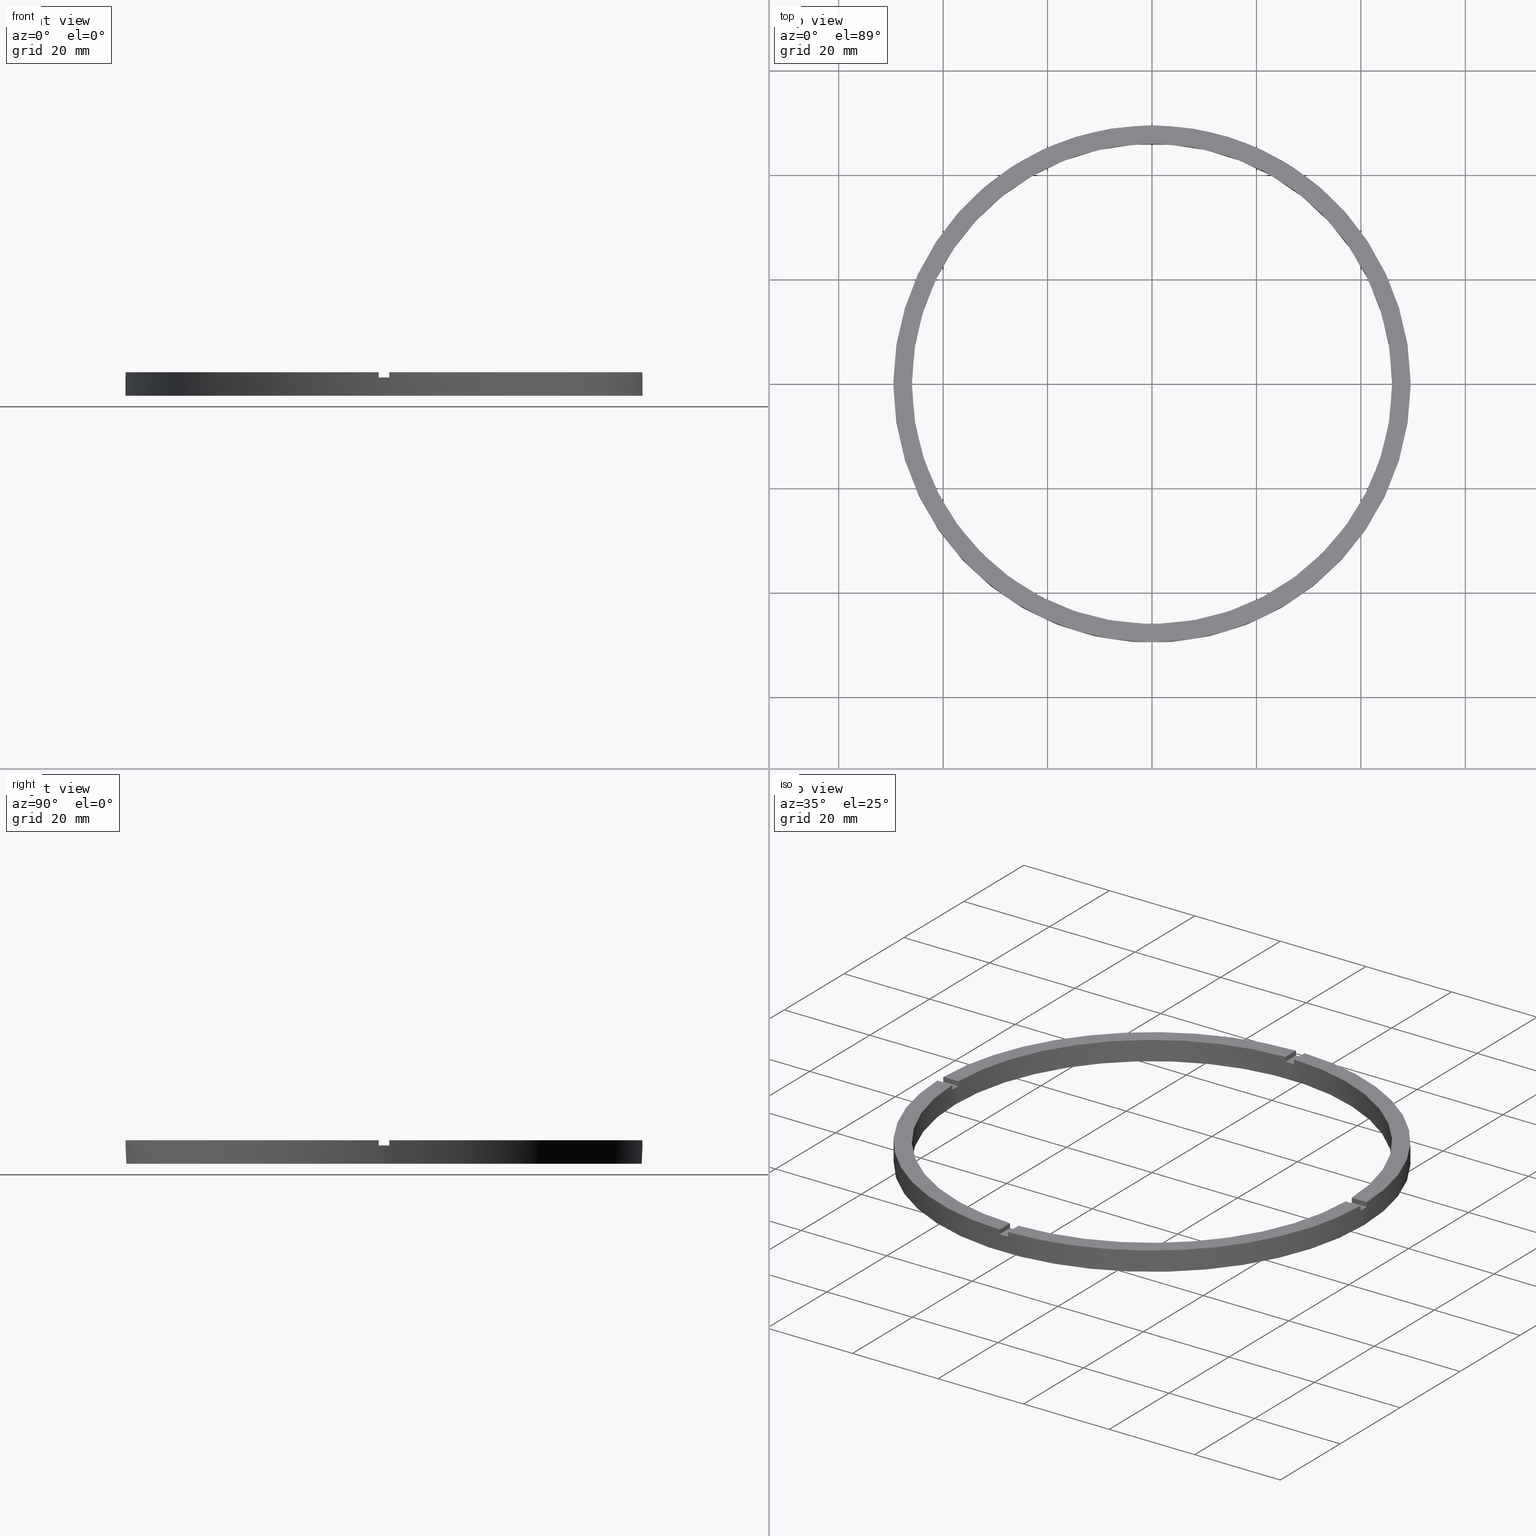
[diagram: canonical four-view strip — front | top / right | iso, engineering-drawing reading convention]
A machine part, canonical four-view strip (front | top / right | iso — engineering-drawing reading convention). The complete STEP part file that produces these views, byte-faithful:
ISO-10303-21;
HEADER;
FILE_DESCRIPTION (( 'STEP AP203' ),
    '1' );
FILE_NAME ('514203.step',
    '2024-12-26T02:47:40',
    ( 'MSI' ),
    ( '' ),
    'SwSTEP 2.0',
    'SolidWorks 2020',
    '' );
FILE_SCHEMA (( 'CONFIG_CONTROL_DESIGN' ));
ENDSEC;

DATA;
#1 = AXIS2_PLACEMENT_3D ( 'NONE', #121, #254, #624 ) ;
#2 = ORIENTED_EDGE ( 'NONE', *, *, #217, .F. ) ;
#3 = ORIENTED_EDGE ( 'NONE', *, *, #719, .T. ) ;
#4 = ADVANCED_FACE ( 'NONE', ( #178 ), #519, .F. ) ;
#5 = EDGE_LOOP ( 'NONE', ( #241, #258, #151, #314 ) ) ;
#6 = VERTEX_POINT ( 'NONE', #615 ) ;
#7 = EDGE_CURVE ( 'NONE', #552, #544, #697, .T. ) ;
#8 = VERTEX_POINT ( 'NONE', #461 ) ;
#9 = EDGE_LOOP ( 'NONE', ( #533, #240, #145, #2 ) ) ;
#10 = ORIENTED_EDGE ( 'NONE', *, *, #93, .T. ) ;
#11 = CARTESIAN_POINT ( 'NONE',  ( 0.9999999999998425704, -45.98912915026767934, 4.500000000000000000 ) ) ;
#12 = ORIENTED_EDGE ( 'NONE', *, *, #126, .F. ) ;
#13 = ORIENTED_EDGE ( 'NONE', *, *, #182, .T. ) ;
#14 = VERTEX_POINT ( 'NONE', #74 ) ;
#15 = ORIENTED_EDGE ( 'NONE', *, *, #561, .F. ) ;
#16 = APPROVAL_DATE_TIME ( #579, #737 ) ;
#17 = ORIENTED_EDGE ( 'NONE', *, *, #609, .F. ) ;
#18 = COORDINATED_UNIVERSAL_TIME_OFFSET ( 8, 0, .AHEAD. ) ;
#19 = PRODUCT_DEFINITION_SHAPE ( 'NONE', 'NONE',  #288 ) ;
#20 = AXIS2_PLACEMENT_3D ( 'NONE', #117, #415, #742 ) ;
#21 = ORIENTED_EDGE ( 'NONE', *, *, #625, .F. ) ;
#22 = ORIENTED_EDGE ( 'NONE', *, *, #152, .T. ) ;
#23 = VERTEX_POINT ( 'NONE', #293 ) ;
#24 = CARTESIAN_POINT ( 'NONE',  ( 0.000000000000000000, 0.000000000000000000, 3.499999999999999556 ) ) ;
#25 = EDGE_CURVE ( 'NONE', #247, #404, #455, .T. ) ;
#26 = ORIENTED_EDGE ( 'NONE', *, *, #120, .T. ) ;
#27 = CC_DESIGN_PERSON_AND_ORGANIZATION_ASSIGNMENT ( #66, #456, ( #636 ) ) ;
#28 = ORIENTED_EDGE ( 'NONE', *, *, #465, .F. ) ;
#29 = EDGE_LOOP ( 'NONE', ( #132, #384 ) ) ;
#30 = DIRECTION ( 'NONE',  ( 1.000000000000000000, 0.000000000000000000, 0.000000000000000000 ) ) ;
#31 = ORIENTED_EDGE ( 'NONE', *, *, #650, .T. ) ;
#32 = CARTESIAN_POINT ( 'NONE',  ( -49.48989795907849043, 0.9999999999999688027, 3.499999999999999556 ) ) ;
#33 = ORIENTED_EDGE ( 'NONE', *, *, #410, .F. ) ;
#34 = DATE_TIME_ROLE ( 'classification_date' ) ;
#35 = CARTESIAN_POINT ( 'NONE',  ( 0.000000000000000000, 0.000000000000000000, 4.500000000000000000 ) ) ;
#36 = CIRCLE ( 'NONE', #434, 46.00000000000000000 ) ;
#37 = ORIENTED_EDGE ( 'NONE', *, *, #98, .T. ) ;
#38 = LINE ( 'NONE', #406, #581 ) ;
#39 = ORIENTED_EDGE ( 'NONE', *, *, #280, .F. ) ;
#40 = DIRECTION ( 'NONE',  ( 6.505213034913025371E-17, -1.000000000000000000, 0.000000000000000000 ) ) ;
#41 = LINE ( 'NONE', #610, #576 ) ;
#42 = CARTESIAN_POINT ( 'NONE',  ( 0.000000000000000000, 0.000000000000000000, 3.499999999999999556 ) ) ;
#43 = ORIENTED_EDGE ( 'NONE', *, *, #671, .T. ) ;
#44 = LINE ( 'NONE', #157, #56 ) ;
#45 = APPROVAL_ROLE ( '' ) ;
#46 = CARTESIAN_POINT ( 'NONE',  ( 0.9999999999999733546, 49.48989795907849043, 3.499999999999999556 ) ) ;
#47 = EDGE_CURVE ( 'NONE', #665, #526, #174, .T. ) ;
#48 = DIRECTION ( 'NONE',  ( 0.000000000000000000, 0.000000000000000000, 1.000000000000000000 ) ) ;
#49 = CALENDAR_DATE ( 2024, 26, 12 ) ;
#50 = DIRECTION ( 'NONE',  ( 0.000000000000000000, 0.000000000000000000, -1.000000000000000000 ) ) ;
#51 = DIRECTION ( 'NONE',  ( 0.000000000000000000, 1.000000000000000000, 0.000000000000000000 ) ) ;
#52 = COORDINATED_UNIVERSAL_TIME_OFFSET ( 8, 0, .AHEAD. ) ;
#53 = AXIS2_PLACEMENT_3D ( 'NONE', #42, #602, #418 ) ;
#54 = LOCAL_TIME ( 10, 47, 40.00000000000000000, #340 ) ;
#55 = VECTOR ( 'NONE', #600, 1000.000000000000000 ) ;
#56 = VECTOR ( 'NONE', #641, 1000.000000000000000 ) ;
#57 = LOCAL_TIME ( 10, 47, 40.00000000000000000, #587 ) ;
#58 = FACE_OUTER_BOUND ( 'NONE', #261, .T. ) ;
#59 = APPROVAL_DATE_TIME ( #338, #156 ) ;
#60 = DIRECTION ( 'NONE',  ( 1.000000000000000000, 0.000000000000000000, -0.000000000000000000 ) ) ;
#61 = CARTESIAN_POINT ( 'NONE',  ( -39.50000000000019185, -1.000000000000029310, 3.499999999999999556 ) ) ;
#62 = DATE_AND_TIME ( #553, #287 ) ;
#63 = EDGE_CURVE ( 'NONE', #754, #401, #198, .T. ) ;
#64 = CARTESIAN_POINT ( 'NONE',  ( 0.9999999999998430145, -49.48989795907849043, 4.500000000000000000 ) ) ;
#65 = CIRCLE ( 'NONE', #473, 49.50000000000000711 ) ;
#66 = PERSON_AND_ORGANIZATION ( #386, #559 ) ;
#67 = CARTESIAN_POINT ( 'NONE',  ( 0.9999999999999733546, 39.50000000000000711, 3.499999999999999556 ) ) ;
#68 = EDGE_CURVE ( 'NONE', #436, #568, #715, .T. ) ;
#69 = PERSON_AND_ORGANIZATION ( #386, #559 ) ;
#70 = DIRECTION ( 'NONE',  ( -1.000000000000000000, -1.301042606982605074E-16, 0.000000000000000000 ) ) ;
#71 = DIRECTION ( 'NONE',  ( -1.000000000000000000, -6.505213034913025371E-17, 0.000000000000000000 ) ) ;
#72 = DATE_AND_TIME ( #591, #57 ) ;
#73 = LOCAL_TIME ( 10, 47, 40.00000000000000000, #327 ) ;
#74 = CARTESIAN_POINT ( 'NONE',  ( 0.9999999999998430145, -49.48989795907849043, 3.499999999999999556 ) ) ;
#75 = DIRECTION ( 'NONE',  ( 0.000000000000000000, 0.000000000000000000, 1.000000000000000000 ) ) ;
#76 = CARTESIAN_POINT ( 'NONE',  ( 0.000000000000000000, 0.000000000000000000, 3.499999999999999556 ) ) ;
#77 = CIRCLE ( 'NONE', #614, 49.50000000000000711 ) ;
#78 = VECTOR ( 'NONE', #139, 1000.000000000000000 ) ;
#79 = CARTESIAN_POINT ( 'NONE',  ( 49.48989795907849043, -1.000000000000155209, 3.499999999999999556 ) ) ;
#80 = CIRCLE ( 'NONE', #692, 46.00000000000000000 ) ;
#81 = PLANE ( 'NONE',  #509 ) ;
#82 = CARTESIAN_POINT ( 'NONE',  ( -46.00000000000000000, 0.000000000000000000, 3.499999999999999556 ) ) ;
#83 = DIRECTION ( 'NONE',  ( 1.301042606982605074E-16, -1.000000000000000000, 0.000000000000000000 ) ) ;
#84 = CARTESIAN_POINT ( 'NONE',  ( 45.98912915026767223, -1.000000000000155431, 4.500000000000000000 ) ) ;
#85 = CARTESIAN_POINT ( 'NONE',  ( -45.98912915026767223, -1.000000000000030420, 4.500000000000000000 ) ) ;
#86 = EDGE_CURVE ( 'NONE', #774, #401, #687, .T. ) ;
#87 = CARTESIAN_POINT ( 'NONE',  ( 0.000000000000000000, 0.000000000000000000, 0.000000000000000000 ) ) ;
#88 = CARTESIAN_POINT ( 'NONE',  ( 0.000000000000000000, 0.000000000000000000, 3.499999999999999556 ) ) ;
#89 = DIRECTION ( 'NONE',  ( 1.000000000000000000, 0.000000000000000000, -0.000000000000000000 ) ) ;
#90 = AXIS2_PLACEMENT_3D ( 'NONE', #221, #205, #676 ) ;
#91 = CARTESIAN_POINT ( 'NONE',  ( 0.000000000000000000, 0.000000000000000000, 3.499999999999999556 ) ) ;
#92 = DIRECTION ( 'NONE',  ( 0.000000000000000000, 0.000000000000000000, 1.000000000000000000 ) ) ;
#93 = EDGE_CURVE ( 'NONE', #424, #163, #176, .T. ) ;
#94 = CARTESIAN_POINT ( 'NONE',  ( -1.000000000000026645, 45.98912915026767223, 4.500000000000000000 ) ) ;
#95 = APPROVAL_STATUS ( 'not_yet_approved' ) ;
#96 = DIRECTION ( 'NONE',  ( 0.000000000000000000, 0.000000000000000000, 1.000000000000000000 ) ) ;
#97 = DIRECTION ( 'NONE',  ( 1.000000000000000000, 6.505213034913025371E-17, 0.000000000000000000 ) ) ;
#98 = EDGE_CURVE ( 'NONE', #689, #649, #448, .T. ) ;
#99 = CARTESIAN_POINT ( 'NONE',  ( -1.000000000000157430, -45.98912915026767223, 4.500000000000000000 ) ) ;
#100 = CARTESIAN_POINT ( 'NONE',  ( 0.9999999999998416822, -39.50000000000018474, 3.499999999999999556 ) ) ;
#101 = AXIS2_PLACEMENT_3D ( 'NONE', #408, #374, #611 ) ;
#102 = DIRECTION ( 'NONE',  ( 1.000000000000000000, 0.000000000000000000, -0.000000000000000000 ) ) ;
#103 = EDGE_CURVE ( 'NONE', #525, #189, #181, .T. ) ;
#104 = CC_DESIGN_PERSON_AND_ORGANIZATION_ASSIGNMENT ( #291, #605, ( #288 ) ) ;
#105 = CARTESIAN_POINT ( 'NONE',  ( -1.000000000000026645, 49.48989795907849043, 4.500000000000000000 ) ) ;
#106 = APPROVAL_STATUS ( 'not_yet_approved' ) ;
#107 = DIRECTION ( 'NONE',  ( -1.000000000000000000, -1.951563910473907735E-16, 0.000000000000000000 ) ) ;
#108 = EDGE_CURVE ( 'NONE', #763, #526, #449, .T. ) ;
#109 = CARTESIAN_POINT ( 'NONE',  ( -1.000000000000026645, 39.50000000000000711, 3.499999999999999556 ) ) ;
#110 = DIRECTION ( 'NONE',  ( -0.000000000000000000, -0.000000000000000000, -1.000000000000000000 ) ) ;
#111 = AXIS2_PLACEMENT_3D ( 'NONE', #627, #179, #379 ) ;
#112 = DIRECTION ( 'NONE',  ( -0.000000000000000000, -0.000000000000000000, -1.000000000000000000 ) ) ;
#113 = CARTESIAN_POINT ( 'NONE',  ( 49.48989795907849043, 0.9999999999998447908, 3.499999999999999556 ) ) ;
#114 = DIRECTION ( 'NONE',  ( 0.000000000000000000, 0.000000000000000000, 1.000000000000000000 ) ) ;
#115 = EDGE_CURVE ( 'NONE', #542, #411, #207, .T. ) ;
#116 = ADVANCED_FACE ( 'NONE', ( #202 ), #474, .T. ) ;
#117 = CARTESIAN_POINT ( 'NONE',  ( 0.000000000000000000, 0.000000000000000000, 3.499999999999999556 ) ) ;
#118 = ADVANCED_FACE ( 'NONE', ( #722 ), #588, .T. ) ;
#119 = CARTESIAN_POINT ( 'NONE',  ( -45.98912915026767223, 0.9999999999999696909, 3.499999999999999556 ) ) ;
#120 = EDGE_CURVE ( 'NONE', #23, #652, #482, .T. ) ;
#121 = CARTESIAN_POINT ( 'NONE',  ( 0.000000000000000000, 0.000000000000000000, 4.500000000000000000 ) ) ;
#122 = CARTESIAN_POINT ( 'NONE',  ( 0.9999999999998425704, -45.98912915026767934, 3.499999999999999556 ) ) ;
#123 = AXIS2_PLACEMENT_3D ( 'NONE', #91, #342, #446 ) ;
#124 = EDGE_LOOP ( 'NONE', ( #560, #31, #753, #162 ) ) ;
#125 = ORIENTED_EDGE ( 'NONE', *, *, #115, .T. ) ;
#126 = EDGE_CURVE ( 'NONE', #303, #453, #725, .T. ) ;
#127 = AXIS2_PLACEMENT_3D ( 'NONE', #349, #739, #30 ) ;
#128 = DIRECTION ( 'NONE',  ( 0.000000000000000000, -0.000000000000000000, 1.000000000000000000 ) ) ;
#129 = VECTOR ( 'NONE', #324, 1000.000000000000000 ) ;
#130 = DIRECTION ( 'NONE',  ( -0.000000000000000000, -0.000000000000000000, -1.000000000000000000 ) ) ;
#131 = LINE ( 'NONE', #100, #426 ) ;
#132 = ORIENTED_EDGE ( 'NONE', *, *, #126, .T. ) ;
#133 = VECTOR ( 'NONE', #114, 1000.000000000000000 ) ;
#134 = LINE ( 'NONE', #504, #165 ) ;
#135 = AXIS2_PLACEMENT_3D ( 'NONE', #364, #226, #748 ) ;
#136 = APPROVAL ( #95, 'δָ��' ) ;
#137 = EDGE_LOOP ( 'NONE', ( #567, #681, #26, #443, #237, #530 ) ) ;
#138 = CARTESIAN_POINT ( 'NONE',  ( -1.000000000000158318, -39.50000000000018474, 3.499999999999999556 ) ) ;
#139 = DIRECTION ( 'NONE',  ( 1.000000000000000000, 1.951563910473907735E-16, -0.000000000000000000 ) ) ;
#140 = ORIENTED_EDGE ( 'NONE', *, *, #571, .T. ) ;
#141 = DIRECTION ( 'NONE',  ( 0.000000000000000000, 0.000000000000000000, 1.000000000000000000 ) ) ;
#142 = ORIENTED_EDGE ( 'NONE', *, *, #571, .F. ) ;
#143 = FACE_OUTER_BOUND ( 'NONE', #575, .T. ) ;
#144 = DIRECTION ( 'NONE',  ( -1.301042606982605074E-16, 1.000000000000000000, -0.000000000000000000 ) ) ;
#145 = ORIENTED_EDGE ( 'NONE', *, *, #120, .F. ) ;
#146 = DIRECTION ( 'NONE',  ( 1.000000000000000000, 0.000000000000000000, 0.000000000000000000 ) ) ;
#147 = AXIS2_PLACEMENT_3D ( 'NONE', #347, #270, #731 ) ;
#148 = ORIENTED_EDGE ( 'NONE', *, *, #601, .T. ) ;
#149 = CARTESIAN_POINT ( 'NONE',  ( 0.000000000000000000, 0.000000000000000000, 3.499999999999999556 ) ) ;
#150 = APPROVAL_ROLE ( '' ) ;
#151 = ORIENTED_EDGE ( 'NONE', *, *, #685, .F. ) ;
#152 = EDGE_CURVE ( 'NONE', #8, #404, #729, .T. ) ;
#153 = ORIENTED_EDGE ( 'NONE', *, *, #378, .T. ) ;
#154 = LINE ( 'NONE', #648, #393 ) ;
#155 = DIRECTION ( 'NONE',  ( 0.000000000000000000, 0.000000000000000000, 1.000000000000000000 ) ) ;
#156 = APPROVAL ( #106, 'δָ��' ) ;
#157 = CARTESIAN_POINT ( 'NONE',  ( 45.98912915026767934, 0.9999999999998445688, 4.500000000000000000 ) ) ;
#158 = CARTESIAN_POINT ( 'NONE',  ( 39.50000000000000000, 0.9999999999998441247, 3.499999999999999556 ) ) ;
#159 = ORIENTED_EDGE ( 'NONE', *, *, #152, .F. ) ;
#160 = EDGE_LOOP ( 'NONE', ( #761, #148, #556, #297 ) ) ;
#161 = CARTESIAN_POINT ( 'NONE',  ( -45.98912915026767223, -1.000000000000030420, 3.499999999999999556 ) ) ;
#162 = ORIENTED_EDGE ( 'NONE', *, *, #256, .F. ) ;
#163 = VERTEX_POINT ( 'NONE', #290 ) ;
#164 = CARTESIAN_POINT ( 'NONE',  ( -45.98912915026767223, 0.9999999999999696909, 4.500000000000000000 ) ) ;
#165 = VECTOR ( 'NONE', #632, 1000.000000000000000 ) ;
#166 = VERTEX_POINT ( 'NONE', #199 ) ;
#167 = DIRECTION ( 'NONE',  ( 1.000000000000000000, 0.000000000000000000, -0.000000000000000000 ) ) ;
#168 = VERTEX_POINT ( 'NONE', #46 ) ;
#169 = EDGE_CURVE ( 'NONE', #8, #168, #678, .T. ) ;
#170 = EDGE_LOOP ( 'NONE', ( #766, #431, #299, #769, #751, #140 ) ) ;
#171 = DIRECTION ( 'NONE',  ( -0.000000000000000000, -0.000000000000000000, -1.000000000000000000 ) ) ;
#172 = VECTOR ( 'NONE', #171, 1000.000000000000000 ) ;
#173 = CARTESIAN_POINT ( 'NONE',  ( -45.98912915026767223, -1.000000000000030420, 4.500000000000000000 ) ) ;
#174 = LINE ( 'NONE', #350, #709 ) ;
#175 = AXIS2_PLACEMENT_3D ( 'NONE', #664, #496, #376 ) ;
#176 = CIRCLE ( 'NONE', #90, 46.00000000000000000 ) ;
#177 = VECTOR ( 'NONE', #265, 1000.000000000000000 ) ;
#178 = FACE_OUTER_BOUND ( 'NONE', #775, .T. ) ;
#179 = DIRECTION ( 'NONE',  ( 0.000000000000000000, 0.000000000000000000, 1.000000000000000000 ) ) ;
#180 = DIRECTION ( 'NONE',  ( 0.000000000000000000, 0.000000000000000000, 1.000000000000000000 ) ) ;
#181 = LINE ( 'NONE', #595, #451 ) ;
#182 = EDGE_CURVE ( 'NONE', #544, #253, #134, .T. ) ;
#183 = EDGE_CURVE ( 'NONE', #14, #391, #131, .T. ) ;
#184 = DIRECTION ( 'NONE',  ( -0.000000000000000000, -0.000000000000000000, -1.000000000000000000 ) ) ;
#185 = VERTEX_POINT ( 'NONE', #370 ) ;
#186 = FACE_OUTER_BOUND ( 'NONE', #5, .T. ) ;
#187 = EDGE_LOOP ( 'NONE', ( #21, #760, #518, #663 ) ) ;
#188 = LINE ( 'NONE', #598, #475 ) ;
#189 = VERTEX_POINT ( 'NONE', #642 ) ;
#190 = VECTOR ( 'NONE', #184, 1000.000000000000000 ) ;
#191 = DIRECTION ( 'NONE',  ( 0.000000000000000000, 0.000000000000000000, 1.000000000000000000 ) ) ;
#192 = EDGE_CURVE ( 'NONE', #508, #411, #442, .T. ) ;
#193 = VECTOR ( 'NONE', #522, 1000.000000000000000 ) ;
#194 = CARTESIAN_POINT ( 'NONE',  ( -46.00000000000000000, 0.000000000000000000, 0.000000000000000000 ) ) ;
#195 = LINE ( 'NONE', #714, #214 ) ;
#196 = CIRCLE ( 'NONE', #700, 49.50000000000000711 ) ;
#197 = EDGE_CURVE ( 'NONE', #546, #652, #414, .T. ) ;
#198 = LINE ( 'NONE', #383, #467 ) ;
#199 = CARTESIAN_POINT ( 'NONE',  ( 0.9999999999998425704, -45.98912915026767934, 4.500000000000000000 ) ) ;
#200 = LINE ( 'NONE', #99, #204 ) ;
#201 = FACE_OUTER_BOUND ( 'NONE', #160, .T. ) ;
#202 = FACE_OUTER_BOUND ( 'NONE', #534, .T. ) ;
#203 = VECTOR ( 'NONE', #661, 1000.000000000000000 ) ;
#204 = VECTOR ( 'NONE', #141, 1000.000000000000000 ) ;
#205 = DIRECTION ( 'NONE',  ( 0.000000000000000000, 0.000000000000000000, 1.000000000000000000 ) ) ;
#206 = CIRCLE ( 'NONE', #101, 49.50000000000000711 ) ;
#207 = CIRCLE ( 'NONE', #147, 46.00000000000000000 ) ;
#208 = LINE ( 'NONE', #381, #463 ) ;
#209 = CARTESIAN_POINT ( 'NONE',  ( 49.48989795907849043, 0.9999999999998447908, 4.500000000000000000 ) ) ;
#210 = AXIS2_PLACEMENT_3D ( 'NONE', #538, #409, #71 ) ;
#211 = CIRCLE ( 'NONE', #248, 49.50000000000000711 ) ;
#212 = VECTOR ( 'NONE', #741, 1000.000000000000000 ) ;
#213 = APPLICATION_PROTOCOL_DEFINITION ( 'international standard', 'config_control_design', 1994, #351 ) ;
#214 = VECTOR ( 'NONE', #361, 1000.000000000000000 ) ;
#215 = VECTOR ( 'NONE', #565, 1000.000000000000000 ) ;
#216 = LINE ( 'NONE', #653, #193 ) ;
#217 = EDGE_CURVE ( 'NONE', #539, #23, #154, .T. ) ;
#218 = FACE_OUTER_BOUND ( 'NONE', #170, .T. ) ;
#219 = DIRECTION ( 'NONE',  ( 0.000000000000000000, 0.000000000000000000, 1.000000000000000000 ) ) ;
#220 = FACE_BOUND ( 'NONE', #29, .T. ) ;
#221 = CARTESIAN_POINT ( 'NONE',  ( 0.000000000000000000, 0.000000000000000000, 4.500000000000000000 ) ) ;
#222 = FACE_OUTER_BOUND ( 'NONE', #520, .T. ) ;
#223 = DIRECTION ( 'NONE',  ( -1.000000000000000000, 0.000000000000000000, 0.000000000000000000 ) ) ;
#224 = DIRECTION ( 'NONE',  ( 0.000000000000000000, 0.000000000000000000, 1.000000000000000000 ) ) ;
#225 = DIRECTION ( 'NONE',  ( 0.000000000000000000, 0.000000000000000000, 1.000000000000000000 ) ) ;
#226 = DIRECTION ( 'NONE',  ( 0.000000000000000000, 0.000000000000000000, 1.000000000000000000 ) ) ;
#227 = AXIS2_PLACEMENT_3D ( 'NONE', #746, #191, #352 ) ;
#228 = CARTESIAN_POINT ( 'NONE',  ( 0.000000000000000000, 0.000000000000000000, 4.500000000000000000 ) ) ;
#229 = CARTESIAN_POINT ( 'NONE',  ( -1.000000000000026645, 49.48989795907849043, 3.499999999999999556 ) ) ;
#230 = DIRECTION ( 'NONE',  ( 1.000000000000000000, 0.000000000000000000, 0.000000000000000000 ) ) ;
#231 = PLANE ( 'NONE',  #768 ) ;
#232 = AXIS2_PLACEMENT_3D ( 'NONE', #302, #584, #390 ) ;
#233 = ADVANCED_FACE ( 'NONE', ( #656 ), #81, .T. ) ;
#234 = ORIENTED_EDGE ( 'NONE', *, *, #502, .F. ) ;
#235 = ORIENTED_EDGE ( 'NONE', *, *, #108, .T. ) ;
#236 = DIRECTION ( 'NONE',  ( 1.000000000000000000, 0.000000000000000000, -0.000000000000000000 ) ) ;
#237 = ORIENTED_EDGE ( 'NONE', *, *, #728, .F. ) ;
#238 = ORIENTED_EDGE ( 'NONE', *, *, #513, .T. ) ;
#239 = CARTESIAN_POINT ( 'NONE',  ( 0.000000000000000000, 0.000000000000000000, 4.500000000000000000 ) ) ;
#240 = ORIENTED_EDGE ( 'NONE', *, *, #286, .T. ) ;
#241 = ORIENTED_EDGE ( 'NONE', *, *, #492, .T. ) ;
#242 = PRODUCT ( '514203', '514203', '', ( #385 ) ) ;
#243 = ADVANCED_FACE ( 'NONE', ( #651 ), #318, .T. ) ;
#244 = CARTESIAN_POINT ( 'NONE',  ( 0.000000000000000000, 0.000000000000000000, 4.500000000000000000 ) ) ;
#245 = EDGE_LOOP ( 'NONE', ( #780, #555, #638, #512, #274, #295, #428, #507, #667, #654, #673, #545 ) ) ;
#246 = CARTESIAN_POINT ( 'NONE',  ( 0.000000000000000000, 0.000000000000000000, 4.500000000000000000 ) ) ;
#247 = VERTEX_POINT ( 'NONE', #524 ) ;
#248 = AXIS2_PLACEMENT_3D ( 'NONE', #398, #371, #230 ) ;
#249 = ORIENTED_EDGE ( 'NONE', *, *, #513, .F. ) ;
#250 = VERTEX_POINT ( 'NONE', #119 ) ;
#251 = ORIENTED_EDGE ( 'NONE', *, *, #685, .T. ) ;
#252 = CC_DESIGN_PERSON_AND_ORGANIZATION_ASSIGNMENT ( #328, #758, ( #495 ) ) ;
#253 = VERTEX_POINT ( 'NONE', #423 ) ;
#254 = DIRECTION ( 'NONE',  ( -0.000000000000000000, -0.000000000000000000, -1.000000000000000000 ) ) ;
#255 = ADVANCED_FACE ( 'NONE', ( #143 ), #619, .F. ) ;
#256 = EDGE_CURVE ( 'NONE', #168, #401, #394, .T. ) ;
#257 = PLANE ( 'NONE',  #458 ) ;
#258 = ORIENTED_EDGE ( 'NONE', *, *, #25, .T. ) ;
#259 = ORIENTED_EDGE ( 'NONE', *, *, #353, .F. ) ;
#260 = DIRECTION ( 'NONE',  ( 1.000000000000000000, 0.000000000000000000, -0.000000000000000000 ) ) ;
#261 = EDGE_LOOP ( 'NONE', ( #277, #540, #12, #695, #497, #564, #10, #550, #306, #33, #566, #284 ) ) ;
#262 = ORIENTED_EDGE ( 'NONE', *, *, #755, .F. ) ;
#263 = ORIENTED_EDGE ( 'NONE', *, *, #360, .T. ) ;
#264 = ORIENTED_EDGE ( 'NONE', *, *, #650, .F. ) ;
#265 = DIRECTION ( 'NONE',  ( 1.301042606982605074E-16, -1.000000000000000000, 0.000000000000000000 ) ) ;
#266 = EDGE_CURVE ( 'NONE', #250, #665, #396, .T. ) ;
#267 = ORIENTED_EDGE ( 'NONE', *, *, #256, .T. ) ;
#268 = VERTEX_POINT ( 'NONE', #471 ) ;
#269 = VERTEX_POINT ( 'NONE', #64 ) ;
#270 = DIRECTION ( 'NONE',  ( 0.000000000000000000, 0.000000000000000000, 1.000000000000000000 ) ) ;
#271 = MANIFOLD_SOLID_BREP ( '�г�-����1', #549 ) ;
#272 = ORIENTED_EDGE ( 'NONE', *, *, #68, .T. ) ;
#273 = EDGE_LOOP ( 'NONE', ( #515, #674, #756, #37 ) ) ;
#274 = ORIENTED_EDGE ( 'NONE', *, *, #280, .T. ) ;
#275 = DIRECTION ( 'NONE',  ( 1.000000000000000000, 0.000000000000000000, 0.000000000000000000 ) ) ;
#276 = ORIENTED_EDGE ( 'NONE', *, *, #357, .F. ) ;
#277 = ORIENTED_EDGE ( 'NONE', *, *, #450, .T. ) ;
#278 = ORIENTED_EDGE ( 'NONE', *, *, #86, .T. ) ;
#279 = ORIENTED_EDGE ( 'NONE', *, *, #103, .F. ) ;
#280 = EDGE_CURVE ( 'NONE', #269, #14, #659, .T. ) ;
#281 = CARTESIAN_POINT ( 'NONE',  ( -39.50000000000019185, -1.000000000000029310, 3.499999999999999556 ) ) ;
#282 = ORIENTED_EDGE ( 'NONE', *, *, #417, .F. ) ;
#283 = ORIENTED_EDGE ( 'NONE', *, *, #492, .F. ) ;
#284 = ORIENTED_EDGE ( 'NONE', *, *, #378, .F. ) ;
#285 = AXIS2_PLACEMENT_3D ( 'NONE', #149, #224, #60 ) ;
#286 = EDGE_CURVE ( 'NONE', #424, #652, #660, .T. ) ;
#287 = LOCAL_TIME ( 10, 47, 40.00000000000000000, #18 ) ;
#288 = PRODUCT_DEFINITION ( 'δ֪', '', #636, #645 ) ;
#289 = PERSON_AND_ORGANIZATION_ROLE ( 'design_owner' ) ;
#290 = CARTESIAN_POINT ( 'NONE',  ( -1.000000000000157430, -45.98912915026767223, 4.500000000000000000 ) ) ;
#291 = PERSON_AND_ORGANIZATION ( #386, #559 ) ;
#292 = DIRECTION ( 'NONE',  ( -1.301042606982605074E-16, 1.000000000000000000, -0.000000000000000000 ) ) ;
#293 = CARTESIAN_POINT ( 'NONE',  ( -49.48989795907849043, -1.000000000000031308, 3.499999999999999556 ) ) ;
#294 = DIRECTION ( 'NONE',  ( -0.000000000000000000, -0.000000000000000000, -1.000000000000000000 ) ) ;
#295 = ORIENTED_EDGE ( 'NONE', *, *, #480, .F. ) ;
#296 = CARTESIAN_POINT ( 'NONE',  ( 0.9999999999999733546, 49.48989795907849043, 4.500000000000000000 ) ) ;
#297 = ORIENTED_EDGE ( 'NONE', *, *, #607, .F. ) ;
#298 = CARTESIAN_POINT ( 'NONE',  ( 39.50000000000000000, -1.000000000000155875, 4.500000000000000000 ) ) ;
#299 = ORIENTED_EDGE ( 'NONE', *, *, #192, .T. ) ;
#300 = DIRECTION ( 'NONE',  ( 0.000000000000000000, 0.000000000000000000, 1.000000000000000000 ) ) ;
#301 = CC_DESIGN_APPROVAL ( #136, ( #636 ) ) ;
#302 = CARTESIAN_POINT ( 'NONE',  ( 0.9999999999998416822, -39.50000000000018474, 3.499999999999999556 ) ) ;
#303 = VERTEX_POINT ( 'NONE', #194 ) ;
#304 = APPLICATION_PROTOCOL_DEFINITION ( 'international standard', 'config_control_design', 1994, #531 ) ;
#305 = EDGE_LOOP ( 'NONE', ( #283, #238, #523, #466 ) ) ;
#306 = ORIENTED_EDGE ( 'NONE', *, *, #344, .T. ) ;
#307 = CARTESIAN_POINT ( 'NONE',  ( 0.000000000000000000, 0.000000000000000000, 4.500000000000000000 ) ) ;
#308 = FACE_OUTER_BOUND ( 'NONE', #510, .T. ) ;
#309 = APPROVAL_PERSON_ORGANIZATION ( #316, #737, #699 ) ;
#310 = EDGE_CURVE ( 'NONE', #250, #763, #208, .T. ) ;
#311 = ORIENTED_EDGE ( 'NONE', *, *, #728, .T. ) ;
#312 = DIRECTION ( 'NONE',  ( 0.000000000000000000, 0.000000000000000000, 1.000000000000000000 ) ) ;
#313 = EDGE_LOOP ( 'NONE', ( #432, #251, #159, #422 ) ) ;
#314 = ORIENTED_EDGE ( 'NONE', *, *, #68, .F. ) ;
#315 = DIRECTION ( 'NONE',  ( 1.000000000000000000, 0.000000000000000000, 0.000000000000000000 ) ) ;
#316 = PERSON_AND_ORGANIZATION ( #386, #559 ) ;
#317 = PLANE ( 'NONE',  #210 ) ;
#318 = PLANE ( 'NONE',  #628 ) ;
#319 = AXIS2_PLACEMENT_3D ( 'NONE', #750, #655, #107 ) ;
#320 = PERSON_AND_ORGANIZATION ( #386, #559 ) ;
#321 = CALENDAR_DATE ( 2024, 26, 12 ) ;
#322 = DIRECTION ( 'NONE',  ( -1.000000000000000000, 0.000000000000000000, 0.000000000000000000 ) ) ;
#323 = APPROVAL_PERSON_ORGANIZATION ( #333, #156, #150 ) ;
#324 = DIRECTION ( 'NONE',  ( -1.000000000000000000, -6.505213034913025371E-17, -0.000000000000000000 ) ) ;
#325 = EDGE_CURVE ( 'NONE', #552, #762, #732, .T. ) ;
#326 = VECTOR ( 'NONE', #362, 1000.000000000000000 ) ;
#327 = COORDINATED_UNIVERSAL_TIME_OFFSET ( 8, 0, .AHEAD. ) ;
#328 = PERSON_AND_ORGANIZATION ( #386, #559 ) ;
#329 = DIRECTION ( 'NONE',  ( 1.000000000000000000, 0.000000000000000000, 0.000000000000000000 ) ) ;
#330 = FACE_OUTER_BOUND ( 'NONE', #778, .T. ) ;
#331 = ADVANCED_FACE ( 'NONE', ( #727 ), #257, .T. ) ;
#332 = CIRCLE ( 'NONE', #666, 46.00000000000000000 ) ;
#333 = PERSON_AND_ORGANIZATION ( #386, #559 ) ;
#334 = CARTESIAN_POINT ( 'NONE',  ( 46.00000000000000000, 5.633375276077824704E-15, 3.499999999999999556 ) ) ;
#335 = DIRECTION ( 'NONE',  ( 0.000000000000000000, 0.000000000000000000, 1.000000000000000000 ) ) ;
#336 = LINE ( 'NONE', #359, #55 ) ;
#337 = AXIS2_PLACEMENT_3D ( 'NONE', #246, #335, #329 ) ;
#338 = DATE_AND_TIME ( #583, #73 ) ;
#339 = APPROVAL_PERSON_ORGANIZATION ( #320, #136, #45 ) ;
#340 = COORDINATED_UNIVERSAL_TIME_OFFSET ( 8, 0, .AHEAD. ) ;
#341 = CC_DESIGN_PERSON_AND_ORGANIZATION_ASSIGNMENT ( #69, #637, ( #636 ) ) ;
#342 = DIRECTION ( 'NONE',  ( 0.000000000000000000, -0.000000000000000000, 1.000000000000000000 ) ) ;
#343 = LINE ( 'NONE', #516, #599 ) ;
#344 = EDGE_CURVE ( 'NONE', #689, #391, #707, .T. ) ;
#345 = CARTESIAN_POINT ( 'NONE',  ( 0.000000000000000000, 0.000000000000000000, 3.499999999999999556 ) ) ;
#346 = LINE ( 'NONE', #387, #78 ) ;
#347 = CARTESIAN_POINT ( 'NONE',  ( 0.000000000000000000, 0.000000000000000000, 3.499999999999999556 ) ) ;
#348 = AXIS2_PLACEMENT_3D ( 'NONE', #764, #312, #315 ) ;
#349 = CARTESIAN_POINT ( 'NONE',  ( 0.000000000000000000, 0.000000000000000000, 3.499999999999999556 ) ) ;
#350 = CARTESIAN_POINT ( 'NONE',  ( -39.50000000000019185, 0.9999999999999708011, 4.500000000000000000 ) ) ;
#351 = APPLICATION_CONTEXT ( 'configuration controlled 3d designs of mechanical parts and assemblies' ) ;
#352 = DIRECTION ( 'NONE',  ( 1.000000000000000000, 0.000000000000000000, 0.000000000000000000 ) ) ;
#353 = EDGE_CURVE ( 'NONE', #6, #754, #718, .T. ) ;
#354 = DIRECTION ( 'NONE',  ( 0.000000000000000000, 0.000000000000000000, 1.000000000000000000 ) ) ;
#355 = SECURITY_CLASSIFICATION_LEVEL ( 'unclassified' ) ;
#356 = CARTESIAN_POINT ( 'NONE',  ( 0.9999999999999733546, 39.50000000000000711, 3.499999999999999556 ) ) ;
#357 = EDGE_CURVE ( 'NONE', #544, #508, #460, .T. ) ;
#359 = CARTESIAN_POINT ( 'NONE',  ( 0.9999999999999733546, 45.98912915026767223, 4.500000000000000000 ) ) ;
#358 =( LENGTH_UNIT ( ) NAMED_UNIT ( * ) SI_UNIT ( .MILLI., .METRE. ) );
#360 = EDGE_CURVE ( 'NONE', #546, #303, #487, .T. ) ;
#361 = DIRECTION ( 'NONE',  ( -1.000000000000000000, -6.505213034913025371E-17, -0.000000000000000000 ) ) ;
#362 = DIRECTION ( 'NONE',  ( -0.000000000000000000, -1.000000000000000000, -0.000000000000000000 ) ) ;
#363 = DIRECTION ( 'NONE',  ( 0.000000000000000000, 0.000000000000000000, 1.000000000000000000 ) ) ;
#364 = CARTESIAN_POINT ( 'NONE',  ( 0.000000000000000000, 0.000000000000000000, 0.000000000000000000 ) ) ;
#365 = CARTESIAN_POINT ( 'NONE',  ( 0.000000000000000000, 0.000000000000000000, 0.000000000000000000 ) ) ;
#366 =( NAMED_UNIT ( * ) SI_UNIT ( $, .STERADIAN. ) SOLID_ANGLE_UNIT ( ) );
#367 = DIRECTION ( 'NONE',  ( 1.000000000000000000, 0.000000000000000000, -0.000000000000000000 ) ) ;
#368 = AXIS2_PLACEMENT_3D ( 'NONE', #345, #447, #501 ) ;
#369 =( GEOMETRIC_REPRESENTATION_CONTEXT ( 3 ) GLOBAL_UNCERTAINTY_ASSIGNED_CONTEXT ( ( #617 ) ) GLOBAL_UNIT_ASSIGNED_CONTEXT ( ( #358, #527, #366 ) ) REPRESENTATION_CONTEXT ( 'NONE', 'WORKASPACE' ) );
#370 = CARTESIAN_POINT ( 'NONE',  ( -1.000000000000156986, -49.48989795907849043, 4.500000000000000000 ) ) ;
#371 = DIRECTION ( 'NONE',  ( -0.000000000000000000, 0.000000000000000000, 1.000000000000000000 ) ) ;
#372 = ADVANCED_FACE ( 'NONE', ( #222 ), #734, .F. ) ;
#373 = AXIS2_PLACEMENT_3D ( 'NONE', #569, #670, #407 ) ;
#374 = DIRECTION ( 'NONE',  ( 0.000000000000000000, 0.000000000000000000, 1.000000000000000000 ) ) ;
#375 = AXIS2_PLACEMENT_3D ( 'NONE', #76, #612, #606 ) ;
#376 = DIRECTION ( 'NONE',  ( 1.000000000000000000, 0.000000000000000000, 0.000000000000000000 ) ) ;
#377 = CARTESIAN_POINT ( 'NONE',  ( 49.48989795907849043, -1.000000000000155209, 4.500000000000000000 ) ) ;
#378 = EDGE_CURVE ( 'NONE', #773, #268, #462, .T. ) ;
#379 = DIRECTION ( 'NONE',  ( 1.000000000000000000, 0.000000000000000000, 0.000000000000000000 ) ) ;
#380 = AXIS2_PLACEMENT_3D ( 'NONE', #35, #96, #511 ) ;
#381 = CARTESIAN_POINT ( 'NONE',  ( -39.50000000000019185, 0.9999999999999708011, 3.499999999999999556 ) ) ;
#382 = ORIENTED_EDGE ( 'NONE', *, *, #629, .T. ) ;
#383 = CARTESIAN_POINT ( 'NONE',  ( 0.9999999999999733546, 39.50000000000000711, 4.500000000000000000 ) ) ;
#384 = ORIENTED_EDGE ( 'NONE', *, *, #776, .T. ) ;
#385 = MECHANICAL_CONTEXT ( 'NONE', #351, 'mechanical' ) ;
#386 = PERSON ( 'δָ��', 'δָ��', 'δָ��', ('δָ��'), ('δָ��'), ('δָ��') ) ;
#387 = CARTESIAN_POINT ( 'NONE',  ( -39.50000000000019185, -1.000000000000029310, 4.500000000000000000 ) ) ;
#388 = DIRECTION ( 'NONE',  ( 1.301042606982605074E-16, -1.000000000000000000, 0.000000000000000000 ) ) ;
#389 = PRODUCT_RELATED_PRODUCT_CATEGORY ( 'detail', '', ( #242 ) ) ;
#390 = DIRECTION ( 'NONE',  ( -1.301042606982605074E-16, 1.000000000000000000, 0.000000000000000000 ) ) ;
#391 = VERTEX_POINT ( 'NONE', #122 ) ;
#392 = ORIENTED_EDGE ( 'NONE', *, *, #93, .F. ) ;
#393 = VECTOR ( 'NONE', #110, 1000.000000000000000 ) ;
#394 = LINE ( 'NONE', #296, #133 ) ;
#395 = ORIENTED_EDGE ( 'NONE', *, *, #744, .F. ) ;
#396 = LINE ( 'NONE', #164, #397 ) ;
#397 = VECTOR ( 'NONE', #363, 1000.000000000000000 ) ;
#398 = CARTESIAN_POINT ( 'NONE',  ( 0.000000000000000000, 0.000000000000000000, 3.499999999999999556 ) ) ;
#399 = PLANE ( 'NONE',  #232 ) ;
#400 = VECTOR ( 'NONE', #493, 1000.000000000000000 ) ;
#401 = VERTEX_POINT ( 'NONE', #723 ) ;
#402 = AXIS2_PLACEMENT_3D ( 'NONE', #691, #40, #97 ) ;
#403 = PLANE ( 'NONE',  #622 ) ;
#404 = VERTEX_POINT ( 'NONE', #435 ) ;
#405 = ORIENTED_EDGE ( 'NONE', *, *, #63, .F. ) ;
#406 = CARTESIAN_POINT ( 'NONE',  ( 46.00000000000000000, 5.633375276077824704E-15, 4.500000000000000000 ) ) ;
#407 = DIRECTION ( 'NONE',  ( 1.000000000000000000, 0.000000000000000000, 0.000000000000000000 ) ) ;
#408 = CARTESIAN_POINT ( 'NONE',  ( 0.000000000000000000, 0.000000000000000000, 4.500000000000000000 ) ) ;
#409 = DIRECTION ( 'NONE',  ( -6.505213034913025371E-17, 1.000000000000000000, 0.000000000000000000 ) ) ;
#410 = EDGE_CURVE ( 'NONE', #166, #391, #717, .T. ) ;
#411 = VERTEX_POINT ( 'NONE', #618 ) ;
#412 = ORIENTED_EDGE ( 'NONE', *, *, #417, .T. ) ;
#413 = VECTOR ( 'NONE', #130, 1000.000000000000000 ) ;
#414 = CIRCLE ( 'NONE', #375, 46.00000000000000000 ) ;
#415 = DIRECTION ( 'NONE',  ( 0.000000000000000000, 0.000000000000000000, 1.000000000000000000 ) ) ;
#416 = AXIS2_PLACEMENT_3D ( 'NONE', #109, #322, #300 ) ;
#417 = EDGE_CURVE ( 'NONE', #774, #6, #195, .T. ) ;
#418 = DIRECTION ( 'NONE',  ( 1.000000000000000000, 0.000000000000000000, 0.000000000000000000 ) ) ;
#419 = CARTESIAN_POINT ( 'NONE',  ( 0.000000000000000000, 0.000000000000000000, 4.500000000000000000 ) ) ;
#420 = CC_DESIGN_APPROVAL ( #737, ( #288 ) ) ;
#421 = DIRECTION ( 'NONE',  ( 1.951563910473907735E-16, -1.000000000000000000, 0.000000000000000000 ) ) ;
#422 = ORIENTED_EDGE ( 'NONE', *, *, #169, .T. ) ;
#423 = CARTESIAN_POINT ( 'NONE',  ( 49.50000000000000711, 6.062001655779399300E-15, 0.000000000000000000 ) ) ;
#424 = VERTEX_POINT ( 'NONE', #173 ) ;
#425 = CC_DESIGN_DATE_AND_TIME_ASSIGNMENT ( #72, #34, ( #495 ) ) ;
#426 = VECTOR ( 'NONE', #144, 1000.000000000000000 ) ;
#427 = ORIENTED_EDGE ( 'NONE', *, *, #410, .T. ) ;
#428 = ORIENTED_EDGE ( 'NONE', *, *, #607, .T. ) ;
#429 = DIRECTION ( 'NONE',  ( 1.000000000000000000, 0.000000000000000000, 0.000000000000000000 ) ) ;
#430 = CARTESIAN_POINT ( 'NONE',  ( 46.00000000000000000, 5.633375276077824704E-15, 0.000000000000000000 ) ) ;
#431 = ORIENTED_EDGE ( 'NONE', *, *, #357, .T. ) ;
#432 = ORIENTED_EDGE ( 'NONE', *, *, #561, .T. ) ;
#433 = AXIS2_PLACEMENT_3D ( 'NONE', #244, #439, #498 ) ;
#434 = AXIS2_PLACEMENT_3D ( 'NONE', #228, #647, #604 ) ;
#435 = CARTESIAN_POINT ( 'NONE',  ( -1.000000000000026645, 45.98912915026767223, 3.499999999999999556 ) ) ;
#436 = VERTEX_POINT ( 'NONE', #770 ) ;
#437 = ADVANCED_FACE ( 'NONE', ( #201 ), #231, .F. ) ;
#438 = CC_DESIGN_APPROVAL ( #156, ( #495 ) ) ;
#439 = DIRECTION ( 'NONE',  ( -0.000000000000000000, -0.000000000000000000, -1.000000000000000000 ) ) ;
#440 = CARTESIAN_POINT ( 'NONE',  ( -49.48989795907849043, 0.9999999999999688027, 4.500000000000000000 ) ) ;
#441 = CARTESIAN_POINT ( 'NONE',  ( -46.00000000000000000, 0.000000000000000000, 4.500000000000000000 ) ) ;
#442 = LINE ( 'NONE', #158, #129 ) ;
#443 = ORIENTED_EDGE ( 'NONE', *, *, #197, .F. ) ;
#444 = ADVANCED_FACE ( 'NONE', ( #218 ), #701, .T. ) ;
#445 = EDGE_LOOP ( 'NONE', ( #234, #767 ) ) ;
#446 = DIRECTION ( 'NONE',  ( 1.000000000000000000, 0.000000000000000000, 0.000000000000000000 ) ) ;
#447 = DIRECTION ( 'NONE',  ( -0.000000000000000000, 0.000000000000000000, 1.000000000000000000 ) ) ;
#448 = LINE ( 'NONE', #138, #177 ) ;
#449 = LINE ( 'NONE', #440, #472 ) ;
#450 = EDGE_CURVE ( 'NONE', #773, #542, #484, .T. ) ;
#451 = VECTOR ( 'NONE', #578, 1000.000000000000000 ) ;
#452 = DATE_TIME_ROLE ( 'creation_date' ) ;
#453 = VERTEX_POINT ( 'NONE', #430 ) ;
#454 = CARTESIAN_POINT ( 'NONE',  ( 0.000000000000000000, 0.000000000000000000, 4.500000000000000000 ) ) ;
#455 = LINE ( 'NONE', #94, #172 ) ;
#456 = PERSON_AND_ORGANIZATION_ROLE ( 'creator' ) ;
#457 = DIRECTION ( 'NONE',  ( 0.000000000000000000, 1.000000000000000000, 0.000000000000000000 ) ) ;
#458 = AXIS2_PLACEMENT_3D ( 'NONE', #672, #735, #260 ) ;
#459 = CARTESIAN_POINT ( 'NONE',  ( 0.000000000000000000, 0.000000000000000000, 4.500000000000000000 ) ) ;
#460 = CIRCLE ( 'NONE', #175, 49.50000000000000711 ) ;
#461 = CARTESIAN_POINT ( 'NONE',  ( 0.9999999999999733546, 45.98912915026767223, 3.499999999999999556 ) ) ;
#462 = LINE ( 'NONE', #84, #468 ) ;
#463 = VECTOR ( 'NONE', #662, 1000.000000000000000 ) ;
#464 = FACE_OUTER_BOUND ( 'NONE', #124, .T. ) ;
#465 = EDGE_CURVE ( 'NONE', #774, #508, #485, .T. ) ;
#466 = ORIENTED_EDGE ( 'NONE', *, *, #719, .F. ) ;
#467 = VECTOR ( 'NONE', #51, 1000.000000000000000 ) ;
#468 = VECTOR ( 'NONE', #180, 1000.000000000000000 ) ;
#469 = PLANE ( 'NONE',  #613 ) ;
#470 = DIRECTION ( 'NONE',  ( 1.000000000000000000, 0.000000000000000000, 0.000000000000000000 ) ) ;
#471 = CARTESIAN_POINT ( 'NONE',  ( 45.98912915026767223, -1.000000000000155431, 4.500000000000000000 ) ) ;
#472 = VECTOR ( 'NONE', #686, 1000.000000000000000 ) ;
#473 = AXIS2_PLACEMENT_3D ( 'NONE', #24, #92, #275 ) ;
#474 = CYLINDRICAL_SURFACE ( 'NONE', #558, 49.50000000000000711 ) ;
#475 = VECTOR ( 'NONE', #696, 1000.000000000000000 ) ;
#476 = DIRECTION ( 'NONE',  ( 1.000000000000000000, 6.505213034913025371E-17, 0.000000000000000000 ) ) ;
#477 = CIRCLE ( 'NONE', #586, 49.50000000000000711 ) ;
#478 = CARTESIAN_POINT ( 'NONE',  ( -45.98912915026767223, 0.9999999999999696909, 4.500000000000000000 ) ) ;
#479 = FACE_OUTER_BOUND ( 'NONE', #245, .T. ) ;
#480 = EDGE_CURVE ( 'NONE', #649, #14, #211, .T. ) ;
#481 = VECTOR ( 'NONE', #623, 1000.000000000000000 ) ;
#482 = LINE ( 'NONE', #281, #212 ) ;
#483 = DIRECTION ( 'NONE',  ( 1.000000000000000000, -0.000000000000000000, 0.000000000000000000 ) ) ;
#484 = CIRCLE ( 'NONE', #348, 46.00000000000000000 ) ;
#485 = LINE ( 'NONE', #640, #710 ) ;
#486 = FACE_OUTER_BOUND ( 'NONE', #273, .T. ) ;
#487 = LINE ( 'NONE', #441, #190 ) ;
#488 = CIRCLE ( 'NONE', #111, 49.50000000000000711 ) ;
#489 = PLANE ( 'NONE',  #416 ) ;
#490 = DIRECTION ( 'NONE',  ( 1.000000000000000000, 1.951563910473907735E-16, 0.000000000000000000 ) ) ;
#491 = CIRCLE ( 'NONE', #373, 49.50000000000000711 ) ;
#492 = EDGE_CURVE ( 'NONE', #436, #247, #705, .T. ) ;
#493 = DIRECTION ( 'NONE',  ( -0.000000000000000000, -0.000000000000000000, -1.000000000000000000 ) ) ;
#494 = ADVANCED_FACE ( 'NONE', ( #730 ), #469, .T. ) ;
#495 = SECURITY_CLASSIFICATION ( '', '', #355 ) ;
#496 = DIRECTION ( 'NONE',  ( 0.000000000000000000, 0.000000000000000000, 1.000000000000000000 ) ) ;
#497 = ORIENTED_EDGE ( 'NONE', *, *, #197, .T. ) ;
#498 = DIRECTION ( 'NONE',  ( -1.000000000000000000, 0.000000000000000000, 0.000000000000000000 ) ) ;
#499 = AXIS2_PLACEMENT_3D ( 'NONE', #693, #219, #470 ) ;
#500 = DIRECTION ( 'NONE',  ( -0.000000000000000000, -0.000000000000000000, -1.000000000000000000 ) ) ;
#501 = DIRECTION ( 'NONE',  ( 1.000000000000000000, 0.000000000000000000, 0.000000000000000000 ) ) ;
#502 = EDGE_CURVE ( 'NONE', #189, #253, #726, .T. ) ;
#503 = ADVANCED_FACE ( 'NONE', ( #186 ), #489, .F. ) ;
#504 = CARTESIAN_POINT ( 'NONE',  ( 49.50000000000000711, 6.062001655779399300E-15, 4.500000000000000000 ) ) ;
#505 = ORIENTED_EDGE ( 'NONE', *, *, #47, .T. ) ;
#506 = AXIS2_PLACEMENT_3D ( 'NONE', #61, #421, #490 ) ;
#507 = ORIENTED_EDGE ( 'NONE', *, *, #629, .F. ) ;
#508 = VERTEX_POINT ( 'NONE', #113 ) ;
#509 = AXIS2_PLACEMENT_3D ( 'NONE', #708, #759, #367 ) ;
#510 = EDGE_LOOP ( 'NONE', ( #412, #43, #765, #28 ) ) ;
#511 = DIRECTION ( 'NONE',  ( 1.000000000000000000, 0.000000000000000000, 0.000000000000000000 ) ) ;
#512 = ORIENTED_EDGE ( 'NONE', *, *, #551, .F. ) ;
#513 = EDGE_CURVE ( 'NONE', #436, #526, #206, .T. ) ;
#514 = CARTESIAN_POINT ( 'NONE',  ( 0.000000000000000000, 0.000000000000000000, 0.000000000000000000 ) ) ;
#515 = ORIENTED_EDGE ( 'NONE', *, *, #480, .T. ) ;
#516 = CARTESIAN_POINT ( 'NONE',  ( -1.000000000000158318, -39.50000000000018474, 4.500000000000000000 ) ) ;
#517 = ORIENTED_EDGE ( 'NONE', *, *, #625, .T. ) ;
#518 = ORIENTED_EDGE ( 'NONE', *, *, #643, .F. ) ;
#519 = PLANE ( 'NONE',  #402 ) ;
#520 = EDGE_LOOP ( 'NONE', ( #781, #125, #777, #536, #264, #22, #680, #3, #783, #311, #263, #682 ) ) ;
#521 = EDGE_LOOP ( 'NONE', ( #405, #259, #282, #278 ) ) ;
#522 = DIRECTION ( 'NONE',  ( 1.000000000000000000, 6.505213034913025371E-17, 0.000000000000000000 ) ) ;
#523 = ORIENTED_EDGE ( 'NONE', *, *, #47, .F. ) ;
#524 = CARTESIAN_POINT ( 'NONE',  ( -1.000000000000026645, 45.98912915026767223, 4.500000000000000000 ) ) ;
#525 = VERTEX_POINT ( 'NONE', #557 ) ;
#526 = VERTEX_POINT ( 'NONE', #620 ) ;
#527 =( NAMED_UNIT ( * ) PLANE_ANGLE_UNIT ( ) SI_UNIT ( $, .RADIAN. ) );
#528 = DIRECTION ( 'NONE',  ( -0.000000000000000000, -0.000000000000000000, -1.000000000000000000 ) ) ;
#529 = ORIENTED_EDGE ( 'NONE', *, *, #266, .T. ) ;
#530 = ORIENTED_EDGE ( 'NONE', *, *, #310, .T. ) ;
#531 = APPLICATION_CONTEXT ( 'configuration controlled 3d designs of mechanical parts and assemblies' ) ;
#532 = ORIENTED_EDGE ( 'NONE', *, *, #643, .T. ) ;
#533 = ORIENTED_EDGE ( 'NONE', *, *, #744, .T. ) ;
#534 = EDGE_LOOP ( 'NONE', ( #276, #13, #782, #279, #17, #235, #249, #272, #15, #267, #752, #537 ) ) ;
#535 = CARTESIAN_POINT ( 'NONE',  ( 0.000000000000000000, 0.000000000000000000, 4.500000000000000000 ) ) ;
#536 = ORIENTED_EDGE ( 'NONE', *, *, #353, .T. ) ;
#537 = ORIENTED_EDGE ( 'NONE', *, *, #465, .T. ) ;
#538 = CARTESIAN_POINT ( 'NONE',  ( 39.50000000000000000, 0.9999999999998441247, 3.499999999999999556 ) ) ;
#539 = VERTEX_POINT ( 'NONE', #562 ) ;
#540 = ORIENTED_EDGE ( 'NONE', *, *, #657, .T. ) ;
#541 = AXIS2_PLACEMENT_3D ( 'NONE', #307, #112, #223 ) ;
#542 = VERTEX_POINT ( 'NONE', #334 ) ;
#543 = ORIENTED_EDGE ( 'NONE', *, *, #183, .F. ) ;
#544 = VERTEX_POINT ( 'NONE', #721 ) ;
#545 = ORIENTED_EDGE ( 'NONE', *, *, #502, .T. ) ;
#546 = VERTEX_POINT ( 'NONE', #82 ) ;
#547 = ORIENTED_EDGE ( 'NONE', *, *, #310, .F. ) ;
#548 = CARTESIAN_POINT ( 'NONE',  ( -1.000000000000158318, -39.50000000000018474, 3.499999999999999556 ) ) ;
#549 = CLOSED_SHELL ( 'NONE', ( #639, #116, #331, #494, #243, #724, #616, #554, #372, #669, #255, #233, #711, #437, #573, #658, #4, #444, #503, #621, #118 ) ) ;
#550 = ORIENTED_EDGE ( 'NONE', *, *, #601, .F. ) ;
#551 = EDGE_CURVE ( 'NONE', #269, #762, #488, .T. ) ;
#552 = VERTEX_POINT ( 'NONE', #79 ) ;
#553 = CALENDAR_DATE ( 2024, 26, 12 ) ;
#554 = ADVANCED_FACE ( 'NONE', ( #479 ), #716, .T. ) ;
#555 = ORIENTED_EDGE ( 'NONE', *, *, #7, .F. ) ;
#556 = ORIENTED_EDGE ( 'NONE', *, *, #755, .T. ) ;
#557 = CARTESIAN_POINT ( 'NONE',  ( -49.50000000000000711, 0.000000000000000000, 3.499999999999999556 ) ) ;
#558 = AXIS2_PLACEMENT_3D ( 'NONE', #454, #500, #570 ) ;
#559 = ORGANIZATION ( 'δָ��', 'δָ��', '' ) ;
#560 = ORIENTED_EDGE ( 'NONE', *, *, #169, .F. ) ;
#561 = EDGE_CURVE ( 'NONE', #168, #568, #491, .T. ) ;
#562 = CARTESIAN_POINT ( 'NONE',  ( -49.48989795907849043, -1.000000000000031308, 4.500000000000000000 ) ) ;
#563 = LOCAL_TIME ( 10, 47, 40.00000000000000000, #52 ) ;
#564 = ORIENTED_EDGE ( 'NONE', *, *, #286, .F. ) ;
#565 = DIRECTION ( 'NONE',  ( -0.000000000000000000, -0.000000000000000000, -1.000000000000000000 ) ) ;
#566 = ORIENTED_EDGE ( 'NONE', *, *, #679, .T. ) ;
#567 = ORIENTED_EDGE ( 'NONE', *, *, #609, .T. ) ;
#568 = VERTEX_POINT ( 'NONE', #229 ) ;
#569 = CARTESIAN_POINT ( 'NONE',  ( 0.000000000000000000, 0.000000000000000000, 3.499999999999999556 ) ) ;
#570 = DIRECTION ( 'NONE',  ( -1.000000000000000000, 0.000000000000000000, 0.000000000000000000 ) ) ;
#571 = EDGE_CURVE ( 'NONE', #773, #552, #216, .T. ) ;
#572 = FACE_OUTER_BOUND ( 'NONE', #9, .T. ) ;
#573 = ADVANCED_FACE ( 'NONE', ( #486 ), #635, .T. ) ;
#574 = PERSON_AND_ORGANIZATION ( #386, #559 ) ;
#575 = EDGE_LOOP ( 'NONE', ( #547, #529, #505, #668 ) ) ;
#576 = VECTOR ( 'NONE', #292, 1000.000000000000000 ) ;
#577 = CC_DESIGN_DATE_AND_TIME_ASSIGNMENT ( #62, #452, ( #288 ) ) ;
#578 = DIRECTION ( 'NONE',  ( -0.000000000000000000, -0.000000000000000000, -1.000000000000000000 ) ) ;
#579 = DATE_AND_TIME ( #49, #563 ) ;
#580 = CYLINDRICAL_SURFACE ( 'NONE', #541, 46.00000000000000000 ) ;
#581 = VECTOR ( 'NONE', #634, 1000.000000000000000 ) ;
#582 = CIRCLE ( 'NONE', #127, 46.00000000000000000 ) ;
#583 = CALENDAR_DATE ( 2024, 26, 12 ) ;
#584 = DIRECTION ( 'NONE',  ( 1.000000000000000000, 1.301042606982605074E-16, 0.000000000000000000 ) ) ;
#585 = ADVANCED_BREP_SHAPE_REPRESENTATION ( '514203', ( #271, #499 ), #369 ) ;
#586 = AXIS2_PLACEMENT_3D ( 'NONE', #646, #75, #633 ) ;
#587 = COORDINATED_UNIVERSAL_TIME_OFFSET ( 8, 0, .AHEAD. ) ;
#588 = PLANE ( 'NONE',  #677 ) ;
#589 = LINE ( 'NONE', #706, #326 ) ;
#590 = DIRECTION ( 'NONE',  ( 1.000000000000000000, 0.000000000000000000, 0.000000000000000000 ) ) ;
#591 = CALENDAR_DATE ( 2024, 26, 12 ) ;
#592 = DATE_AND_TIME ( #321, #54 ) ;
#593 = FACE_OUTER_BOUND ( 'NONE', #683, .T. ) ;
#594 = SHAPE_DEFINITION_REPRESENTATION ( #19, #585 ) ;
#595 = CARTESIAN_POINT ( 'NONE',  ( -49.50000000000000711, 0.000000000000000000, 4.500000000000000000 ) ) ;
#596 = APPROVAL_DATE_TIME ( #592, #136 ) ;
#597 = PLANE ( 'NONE',  #702 ) ;
#598 = CARTESIAN_POINT ( 'NONE',  ( -1.000000000000156986, -49.48989795907849043, 4.500000000000000000 ) ) ;
#599 = VECTOR ( 'NONE', #388, 1000.000000000000000 ) ;
#600 = DIRECTION ( 'NONE',  ( 0.000000000000000000, 0.000000000000000000, 1.000000000000000000 ) ) ;
#601 = EDGE_CURVE ( 'NONE', #689, #163, #200, .T. ) ;
#602 = DIRECTION ( 'NONE',  ( -0.000000000000000000, 0.000000000000000000, 1.000000000000000000 ) ) ;
#603 = DIRECTION ( 'NONE',  ( 1.000000000000000000, 0.000000000000000000, 0.000000000000000000 ) ) ;
#604 = DIRECTION ( 'NONE',  ( 1.000000000000000000, 0.000000000000000000, 0.000000000000000000 ) ) ;
#605 = PERSON_AND_ORGANIZATION_ROLE ( 'creator' ) ;
#606 = DIRECTION ( 'NONE',  ( 1.000000000000000000, 0.000000000000000000, 0.000000000000000000 ) ) ;
#607 = EDGE_CURVE ( 'NONE', #649, #185, #188, .T. ) ;
#608 = DIRECTION ( 'NONE',  ( 0.000000000000000000, 0.000000000000000000, 1.000000000000000000 ) ) ;
#609 = EDGE_CURVE ( 'NONE', #763, #525, #477, .T. ) ;
#610 = CARTESIAN_POINT ( 'NONE',  ( 0.9999999999998416822, -39.50000000000018474, 4.500000000000000000 ) ) ;
#611 = DIRECTION ( 'NONE',  ( 1.000000000000000000, 0.000000000000000000, 0.000000000000000000 ) ) ;
#612 = DIRECTION ( 'NONE',  ( 0.000000000000000000, 0.000000000000000000, 1.000000000000000000 ) ) ;
#613 = AXIS2_PLACEMENT_3D ( 'NONE', #419, #698, #236 ) ;
#614 = AXIS2_PLACEMENT_3D ( 'NONE', #514, #354, #590 ) ;
#615 = CARTESIAN_POINT ( 'NONE',  ( 45.98912915026767934, 0.9999999999998445688, 4.500000000000000000 ) ) ;
#616 = ADVANCED_FACE ( 'NONE', ( #720, #220 ), #690, .F. ) ;
#617 = UNCERTAINTY_MEASURE_WITH_UNIT (LENGTH_MEASURE( 1.000000000000000082E-05 ), #358, 'distance_accuracy_value', 'NONE');
#618 = CARTESIAN_POINT ( 'NONE',  ( 45.98912915026767934, 0.9999999999998445688, 3.499999999999999556 ) ) ;
#619 = PLANE ( 'NONE',  #319 ) ;
#620 = CARTESIAN_POINT ( 'NONE',  ( -49.48989795907849043, 0.9999999999999688027, 4.500000000000000000 ) ) ;
#621 = ADVANCED_FACE ( 'NONE', ( #464 ), #403, .F. ) ;
#622 = AXIS2_PLACEMENT_3D ( 'NONE', #67, #483, #50 ) ;
#623 = DIRECTION ( 'NONE',  ( 0.000000000000000000, 0.000000000000000000, 1.000000000000000000 ) ) ;
#624 = DIRECTION ( 'NONE',  ( -1.000000000000000000, 0.000000000000000000, 0.000000000000000000 ) ) ;
#625 = EDGE_CURVE ( 'NONE', #268, #762, #738, .T. ) ;
#626 = CARTESIAN_POINT ( 'NONE',  ( 0.9999999999998430145, -49.48989795907849043, 4.500000000000000000 ) ) ;
#627 = CARTESIAN_POINT ( 'NONE',  ( 0.000000000000000000, 0.000000000000000000, 4.500000000000000000 ) ) ;
#628 = AXIS2_PLACEMENT_3D ( 'NONE', #239, #225, #167 ) ;
#629 = EDGE_CURVE ( 'NONE', #539, #185, #196, .T. ) ;
#630 = CARTESIAN_POINT ( 'NONE',  ( 0.9999999999999733546, 45.98912915026767223, 4.500000000000000000 ) ) ;
#631 = CARTESIAN_POINT ( 'NONE',  ( 45.98912915026767223, -1.000000000000155431, 3.499999999999999556 ) ) ;
#632 = DIRECTION ( 'NONE',  ( -0.000000000000000000, -0.000000000000000000, -1.000000000000000000 ) ) ;
#633 = DIRECTION ( 'NONE',  ( 1.000000000000000000, 0.000000000000000000, 0.000000000000000000 ) ) ;
#634 = DIRECTION ( 'NONE',  ( -0.000000000000000000, -0.000000000000000000, -1.000000000000000000 ) ) ;
#635 = PLANE ( 'NONE',  #53 ) ;
#636 = PRODUCT_DEFINITION_FORMATION_WITH_SPECIFIED_SOURCE ( '�κ�', '', #242, .NOT_KNOWN. ) ;
#637 = PERSON_AND_ORGANIZATION_ROLE ( 'design_supplier' ) ;
#638 = ORIENTED_EDGE ( 'NONE', *, *, #325, .T. ) ;
#639 = ADVANCED_FACE ( 'NONE', ( #58 ), #580, .F. ) ;
#640 = CARTESIAN_POINT ( 'NONE',  ( 49.48989795907849043, 0.9999999999998447908, 4.500000000000000000 ) ) ;
#641 = DIRECTION ( 'NONE',  ( -0.000000000000000000, -0.000000000000000000, -1.000000000000000000 ) ) ;
#642 = CARTESIAN_POINT ( 'NONE',  ( -49.50000000000000711, 0.000000000000000000, 0.000000000000000000 ) ) ;
#643 = EDGE_CURVE ( 'NONE', #269, #166, #41, .T. ) ;
#644 = CARTESIAN_POINT ( 'NONE',  ( -1.000000000000156986, -49.48989795907849043, 3.499999999999999556 ) ) ;
#645 = DESIGN_CONTEXT ( 'detailed design', #531, 'design' ) ;
#646 = CARTESIAN_POINT ( 'NONE',  ( 0.000000000000000000, 0.000000000000000000, 3.499999999999999556 ) ) ;
#647 = DIRECTION ( 'NONE',  ( 0.000000000000000000, 0.000000000000000000, 1.000000000000000000 ) ) ;
#648 = CARTESIAN_POINT ( 'NONE',  ( -49.48989795907849043, -1.000000000000031308, 4.500000000000000000 ) ) ;
#649 = VERTEX_POINT ( 'NONE', #644 ) ;
#650 = EDGE_CURVE ( 'NONE', #8, #754, #336, .T. ) ;
#651 = FACE_OUTER_BOUND ( 'NONE', #187, .T. ) ;
#652 = VERTEX_POINT ( 'NONE', #161 ) ;
#653 = CARTESIAN_POINT ( 'NONE',  ( 39.50000000000000000, -1.000000000000155875, 3.499999999999999556 ) ) ;
#654 = ORIENTED_EDGE ( 'NONE', *, *, #736, .F. ) ;
#655 = DIRECTION ( 'NONE',  ( -1.951563910473907735E-16, 1.000000000000000000, 0.000000000000000000 ) ) ;
#656 = FACE_OUTER_BOUND ( 'NONE', #137, .T. ) ;
#657 = EDGE_CURVE ( 'NONE', #542, #453, #38, .T. ) ;
#658 = ADVANCED_FACE ( 'NONE', ( #308 ), #317, .F. ) ;
#659 = LINE ( 'NONE', #626, #400 ) ;
#660 = LINE ( 'NONE', #85, #413 ) ;
#661 = DIRECTION ( 'NONE',  ( -0.000000000000000000, -1.000000000000000000, -0.000000000000000000 ) ) ;
#662 = DIRECTION ( 'NONE',  ( -1.000000000000000000, -1.951563910473907735E-16, 0.000000000000000000 ) ) ;
#663 = ORIENTED_EDGE ( 'NONE', *, *, #551, .T. ) ;
#664 = CARTESIAN_POINT ( 'NONE',  ( 0.000000000000000000, 0.000000000000000000, 3.499999999999999556 ) ) ;
#665 = VERTEX_POINT ( 'NONE', #478 ) ;
#666 = AXIS2_PLACEMENT_3D ( 'NONE', #459, #48, #745 ) ;
#667 = ORIENTED_EDGE ( 'NONE', *, *, #217, .T. ) ;
#668 = ORIENTED_EDGE ( 'NONE', *, *, #108, .F. ) ;
#669 = ADVANCED_FACE ( 'NONE', ( #572 ), #757, .F. ) ;
#670 = DIRECTION ( 'NONE',  ( 0.000000000000000000, -0.000000000000000000, 1.000000000000000000 ) ) ;
#671 = EDGE_CURVE ( 'NONE', #6, #411, #44, .T. ) ;
#672 = CARTESIAN_POINT ( 'NONE',  ( 0.000000000000000000, 0.000000000000000000, 4.500000000000000000 ) ) ;
#673 = ORIENTED_EDGE ( 'NONE', *, *, #103, .T. ) ;
#674 = ORIENTED_EDGE ( 'NONE', *, *, #183, .T. ) ;
#675 = ORIENTED_EDGE ( 'NONE', *, *, #325, .F. ) ;
#676 = DIRECTION ( 'NONE',  ( 1.000000000000000000, 0.000000000000000000, 0.000000000000000000 ) ) ;
#677 = AXIS2_PLACEMENT_3D ( 'NONE', #88, #128, #89 ) ;
#678 = LINE ( 'NONE', #356, #684 ) ;
#679 = EDGE_CURVE ( 'NONE', #166, #268, #36, .T. ) ;
#680 = ORIENTED_EDGE ( 'NONE', *, *, #25, .F. ) ;
#681 = ORIENTED_EDGE ( 'NONE', *, *, #736, .T. ) ;
#682 = ORIENTED_EDGE ( 'NONE', *, *, #776, .F. ) ;
#683 = EDGE_LOOP ( 'NONE', ( #262, #392, #395, #382 ) ) ;
#684 = VECTOR ( 'NONE', #457, 1000.000000000000000 ) ;
#685 = EDGE_CURVE ( 'NONE', #568, #404, #589, .T. ) ;
#686 = DIRECTION ( 'NONE',  ( 0.000000000000000000, 0.000000000000000000, 1.000000000000000000 ) ) ;
#687 = CIRCLE ( 'NONE', #380, 49.50000000000000711 ) ;
#688 = CARTESIAN_POINT ( 'NONE',  ( 0.000000000000000000, 0.000000000000000000, 4.500000000000000000 ) ) ;
#689 = VERTEX_POINT ( 'NONE', #772 ) ;
#690 = PLANE ( 'NONE',  #135 ) ;
#691 = CARTESIAN_POINT ( 'NONE',  ( 39.50000000000000000, -1.000000000000155875, 3.499999999999999556 ) ) ;
#692 = AXIS2_PLACEMENT_3D ( 'NONE', #87, #712, #429 ) ;
#693 = CARTESIAN_POINT ( 'NONE',  ( 0.000000000000000000, 0.000000000000000000, 0.000000000000000000 ) ) ;
#694 = VECTOR ( 'NONE', #528, 1000.000000000000000 ) ;
#695 = ORIENTED_EDGE ( 'NONE', *, *, #360, .F. ) ;
#696 = DIRECTION ( 'NONE',  ( 0.000000000000000000, 0.000000000000000000, 1.000000000000000000 ) ) ;
#697 = CIRCLE ( 'NONE', #20, 49.50000000000000711 ) ;
#698 = DIRECTION ( 'NONE',  ( 0.000000000000000000, 0.000000000000000000, 1.000000000000000000 ) ) ;
#699 = APPROVAL_ROLE ( '' ) ;
#700 = AXIS2_PLACEMENT_3D ( 'NONE', #535, #608, #146 ) ;
#701 = PLANE ( 'NONE',  #285 ) ;
#702 = AXIS2_PLACEMENT_3D ( 'NONE', #688, #747, #102 ) ;
#703 = APPROVAL_STATUS ( 'not_yet_approved' ) ;
#704 = CC_DESIGN_SECURITY_CLASSIFICATION ( #495, ( #636 ) ) ;
#705 = LINE ( 'NONE', #779, #203 ) ;
#706 = CARTESIAN_POINT ( 'NONE',  ( -1.000000000000026645, 39.50000000000000711, 3.499999999999999556 ) ) ;
#707 = CIRCLE ( 'NONE', #368, 46.00000000000000000 ) ;
#708 = CARTESIAN_POINT ( 'NONE',  ( 0.000000000000000000, 0.000000000000000000, 3.499999999999999556 ) ) ;
#709 = VECTOR ( 'NONE', #749, 1000.000000000000000 ) ;
#710 = VECTOR ( 'NONE', #294, 1000.000000000000000 ) ;
#711 = ADVANCED_FACE ( 'NONE', ( #330 ), #399, .F. ) ;
#712 = DIRECTION ( 'NONE',  ( 0.000000000000000000, 0.000000000000000000, 1.000000000000000000 ) ) ;
#713 = VECTOR ( 'NONE', #476, 1000.000000000000000 ) ;
#714 = CARTESIAN_POINT ( 'NONE',  ( 39.50000000000000000, 0.9999999999998441247, 4.500000000000000000 ) ) ;
#715 = LINE ( 'NONE', #105, #694 ) ;
#716 = CYLINDRICAL_SURFACE ( 'NONE', #433, 49.50000000000000711 ) ;
#717 = LINE ( 'NONE', #11, #215 ) ;
#718 = CIRCLE ( 'NONE', #337, 46.00000000000000000 ) ;
#719 = EDGE_CURVE ( 'NONE', #247, #665, #332, .T. ) ;
#720 = FACE_OUTER_BOUND ( 'NONE', #445, .T. ) ;
#721 = CARTESIAN_POINT ( 'NONE',  ( 49.50000000000000711, 6.062001655779399300E-15, 3.499999999999999556 ) ) ;
#722 = FACE_OUTER_BOUND ( 'NONE', #313, .T. ) ;
#723 = CARTESIAN_POINT ( 'NONE',  ( 0.9999999999999733546, 49.48989795907849043, 4.500000000000000000 ) ) ;
#724 = ADVANCED_FACE ( 'NONE', ( #593 ), #597, .T. ) ;
#725 = CIRCLE ( 'NONE', #227, 46.00000000000000000 ) ;
#726 = CIRCLE ( 'NONE', #733, 49.50000000000000711 ) ;
#727 = FACE_OUTER_BOUND ( 'NONE', #305, .T. ) ;
#728 = EDGE_CURVE ( 'NONE', #250, #546, #582, .T. ) ;
#729 = CIRCLE ( 'NONE', #123, 46.00000000000000000 ) ;
#730 = FACE_OUTER_BOUND ( 'NONE', #521, .T. ) ;
#731 = DIRECTION ( 'NONE',  ( 1.000000000000000000, 0.000000000000000000, 0.000000000000000000 ) ) ;
#732 = LINE ( 'NONE', #377, #481 ) ;
#733 = AXIS2_PLACEMENT_3D ( 'NONE', #365, #155, #603 ) ;
#734 = CYLINDRICAL_SURFACE ( 'NONE', #1, 46.00000000000000000 ) ;
#735 = DIRECTION ( 'NONE',  ( 0.000000000000000000, 0.000000000000000000, 1.000000000000000000 ) ) ;
#736 = EDGE_CURVE ( 'NONE', #525, #23, #65, .T. ) ;
#737 = APPROVAL ( #703, 'δָ��' ) ;
#738 = LINE ( 'NONE', #298, #713 ) ;
#739 = DIRECTION ( 'NONE',  ( 0.000000000000000000, 0.000000000000000000, 1.000000000000000000 ) ) ;
#740 = EDGE_CURVE ( 'NONE', #253, #189, #77, .T. ) ;
#741 = DIRECTION ( 'NONE',  ( 1.000000000000000000, 1.951563910473907735E-16, -0.000000000000000000 ) ) ;
#742 = DIRECTION ( 'NONE',  ( 1.000000000000000000, 0.000000000000000000, 0.000000000000000000 ) ) ;
#743 = CARTESIAN_POINT ( 'NONE',  ( 49.48989795907849043, -1.000000000000155209, 4.500000000000000000 ) ) ;
#744 = EDGE_CURVE ( 'NONE', #539, #424, #346, .T. ) ;
#745 = DIRECTION ( 'NONE',  ( 1.000000000000000000, 0.000000000000000000, 0.000000000000000000 ) ) ;
#746 = CARTESIAN_POINT ( 'NONE',  ( 0.000000000000000000, 0.000000000000000000, 0.000000000000000000 ) ) ;
#747 = DIRECTION ( 'NONE',  ( 0.000000000000000000, 0.000000000000000000, 1.000000000000000000 ) ) ;
#748 = DIRECTION ( 'NONE',  ( 1.000000000000000000, 0.000000000000000000, -0.000000000000000000 ) ) ;
#749 = DIRECTION ( 'NONE',  ( -1.000000000000000000, -1.951563910473907735E-16, 0.000000000000000000 ) ) ;
#750 = CARTESIAN_POINT ( 'NONE',  ( -39.50000000000019185, 0.9999999999999708011, 3.499999999999999556 ) ) ;
#751 = ORIENTED_EDGE ( 'NONE', *, *, #450, .F. ) ;
#752 = ORIENTED_EDGE ( 'NONE', *, *, #86, .F. ) ;
#753 = ORIENTED_EDGE ( 'NONE', *, *, #63, .T. ) ;
#754 = VERTEX_POINT ( 'NONE', #630 ) ;
#755 = EDGE_CURVE ( 'NONE', #163, #185, #343, .T. ) ;
#756 = ORIENTED_EDGE ( 'NONE', *, *, #344, .F. ) ;
#757 = PLANE ( 'NONE',  #506 ) ;
#758 = PERSON_AND_ORGANIZATION_ROLE ( 'classification_officer' ) ;
#759 = DIRECTION ( 'NONE',  ( 0.000000000000000000, 0.000000000000000000, 1.000000000000000000 ) ) ;
#760 = ORIENTED_EDGE ( 'NONE', *, *, #679, .F. ) ;
#761 = ORIENTED_EDGE ( 'NONE', *, *, #98, .F. ) ;
#762 = VERTEX_POINT ( 'NONE', #743 ) ;
#763 = VERTEX_POINT ( 'NONE', #32 ) ;
#764 = CARTESIAN_POINT ( 'NONE',  ( 0.000000000000000000, 0.000000000000000000, 3.499999999999999556 ) ) ;
#765 = ORIENTED_EDGE ( 'NONE', *, *, #192, .F. ) ;
#766 = ORIENTED_EDGE ( 'NONE', *, *, #7, .T. ) ;
#767 = ORIENTED_EDGE ( 'NONE', *, *, #740, .F. ) ;
#768 = AXIS2_PLACEMENT_3D ( 'NONE', #548, #70, #83 ) ;
#769 = ORIENTED_EDGE ( 'NONE', *, *, #115, .F. ) ;
#770 = CARTESIAN_POINT ( 'NONE',  ( -1.000000000000026645, 49.48989795907849043, 4.500000000000000000 ) ) ;
#771 = CC_DESIGN_PERSON_AND_ORGANIZATION_ASSIGNMENT ( #574, #289, ( #242 ) ) ;
#772 = CARTESIAN_POINT ( 'NONE',  ( -1.000000000000157430, -45.98912915026767223, 3.499999999999999556 ) ) ;
#773 = VERTEX_POINT ( 'NONE', #631 ) ;
#774 = VERTEX_POINT ( 'NONE', #209 ) ;
#775 = EDGE_LOOP ( 'NONE', ( #142, #153, #517, #675 ) ) ;
#776 = EDGE_CURVE ( 'NONE', #453, #303, #80, .T. ) ;
#777 = ORIENTED_EDGE ( 'NONE', *, *, #671, .F. ) ;
#778 = EDGE_LOOP ( 'NONE', ( #532, #427, #543, #39 ) ) ;
#779 = CARTESIAN_POINT ( 'NONE',  ( -1.000000000000026645, 39.50000000000000711, 4.500000000000000000 ) ) ;
#780 = ORIENTED_EDGE ( 'NONE', *, *, #182, .F. ) ;
#781 = ORIENTED_EDGE ( 'NONE', *, *, #657, .F. ) ;
#782 = ORIENTED_EDGE ( 'NONE', *, *, #740, .T. ) ;
#783 = ORIENTED_EDGE ( 'NONE', *, *, #266, .F. ) ;
ENDSEC;
END-ISO-10303-21;
